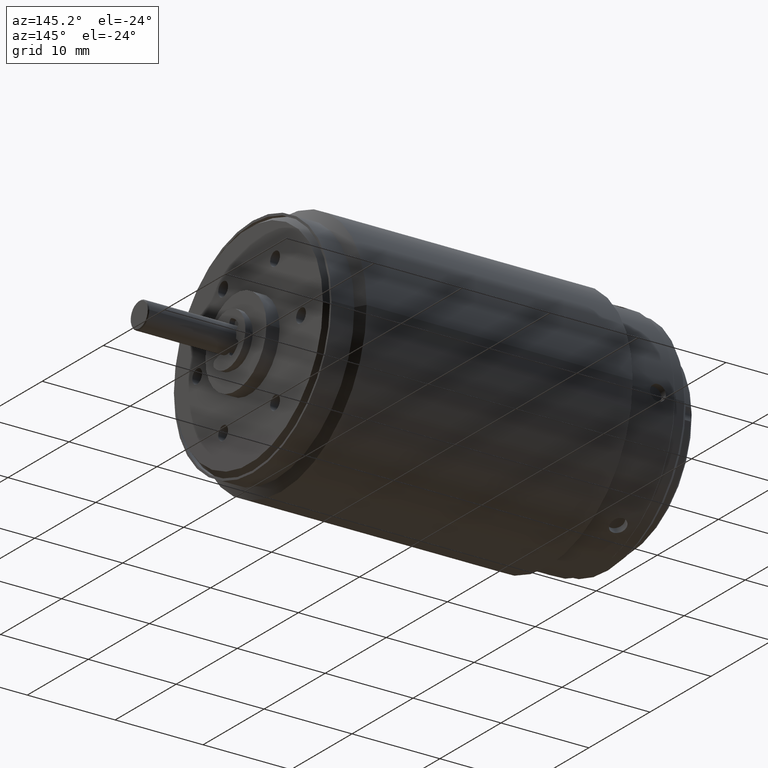
[diagram: clean part render]
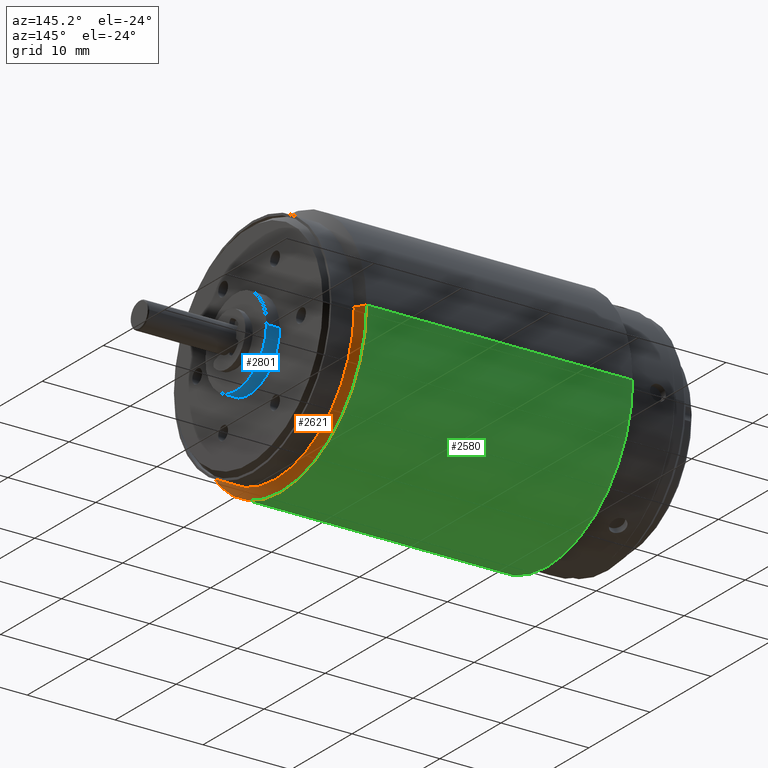
[diagram: same view with three faces highlighted in distinct colors, each labeled with its STEP entity id]
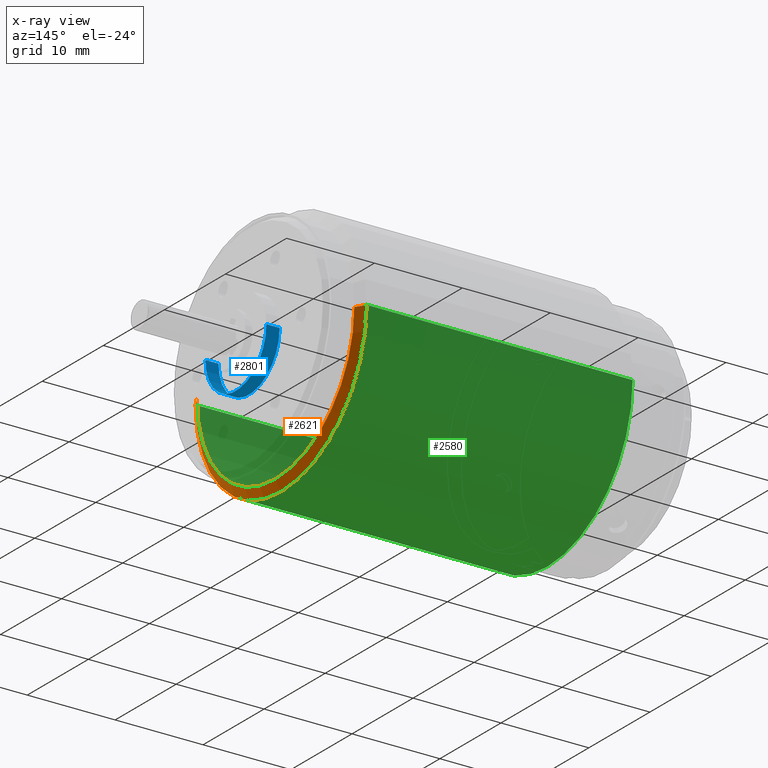
[diagram: x-ray of the same camera — body ghosted, the three highlighted faces saturated]
A machine part, auxiliary view with three faces highlighted in distinct colors.
The next image is the same camera in x-ray (body ghosted, the three faces saturated) — at least one of them is partly hidden behind the body in this view.
Their STEP definitions:

[orange] entity #2621 — the highlighted conical surface has half-angle 60 deg.
#441=CARTESIAN_POINT('',(3.586491470389E1,0.E0,0.E0));
#442=DIRECTION('',(1.E0,0.E0,0.E0));
#443=DIRECTION('',(0.E0,-1.E0,0.E0));
#444=AXIS2_PLACEMENT_3D('',#441,#442,#443);
#464=DIRECTION('',(5.000000000035E-1,8.660254037824E-1,0.E0));
#465=VECTOR('',#464,1.270170592219E0);
#466=CARTESIAN_POINT('',(3.586491470389E1,-1.4E1,0.E0));
#467=LINE('',#466,#465);
#468=CARTESIAN_POINT('',(3.65E1,0.E0,0.E0));
#469=DIRECTION('',(1.E0,0.E0,0.E0));
#470=DIRECTION('',(0.E0,-1.E0,0.E0));
#471=AXIS2_PLACEMENT_3D('',#468,#469,#470);
#473=DIRECTION('',(-5.000000000035E-1,8.660254037824E-1,0.E0));
#474=VECTOR('',#473,1.270170592218E0);
#475=CARTESIAN_POINT('',(3.65E1,1.29E1,0.E0));
#476=LINE('',#475,#474);
#1889=CARTESIAN_POINT('',(3.65E1,-1.29E1,0.E0));
#1890=CARTESIAN_POINT('',(3.65E1,1.29E1,0.E0));
#1891=VERTEX_POINT('',#1889);
#1892=VERTEX_POINT('',#1890);
#1893=CARTESIAN_POINT('',(3.586491470389E1,-1.4E1,0.E0));
#1894=VERTEX_POINT('',#1893);
#1895=CARTESIAN_POINT('',(3.586491470389E1,1.4E1,0.E0));
#1896=VERTEX_POINT('',#1895);
#2609=CARTESIAN_POINT('',(3.618245735194E1,0.E0,0.E0));
#2610=DIRECTION('',(-1.E0,0.E0,0.E0));
#2611=DIRECTION('',(0.E0,1.E0,0.E0));
#2612=AXIS2_PLACEMENT_3D('',#2609,#2610,#2611);
#2613=CONICAL_SURFACE('',#2612,1.345E1,5.999999999960E1);
#2614=ORIENTED_EDGE('',*,*,#2599,.T.);
#2616=ORIENTED_EDGE('',*,*,#2615,.T.);
#2617=ORIENTED_EDGE('',*,*,#2602,.T.);
#2618=ORIENTED_EDGE('',*,*,#2573,.F.);
#2619=EDGE_LOOP('',(#2614,#2616,#2617,#2618));
#2620=FACE_OUTER_BOUND('',#2619,.F.);
#2621=ADVANCED_FACE('',(#2620),#2613,.T.);
#445=CIRCLE('',#444,1.4E1);
#472=CIRCLE('',#471,1.29E1);
#2573=EDGE_CURVE('',#1894,#1896,#445,.T.);
#2599=EDGE_CURVE('',#1894,#1891,#467,.T.);
#2602=EDGE_CURVE('',#1892,#1896,#476,.T.);
#2615=EDGE_CURVE('',#1891,#1892,#472,.T.);

[blue] entity #2801 — the highlighted cylindrical surface (partial cylindrical patch) has radius 5 mm, axis along (1, 0, 0).
#546=CARTESIAN_POINT('',(3.950803759033E1,0.E0,0.E0));
#547=DIRECTION('',(1.E0,0.E0,0.E0));
#548=DIRECTION('',(0.E0,-1.E0,0.E0));
#549=AXIS2_PLACEMENT_3D('',#546,#547,#548);
#611=DIRECTION('',(1.E0,0.E0,0.E0));
#612=VECTOR('',#611,1.5E0);
#613=CARTESIAN_POINT('',(3.950803759033E1,-5.E0,0.E0));
#614=LINE('',#613,#612);
#615=DIRECTION('',(-1.E0,0.E0,0.E0));
#616=VECTOR('',#615,1.5E0);
#617=CARTESIAN_POINT('',(4.100803759033E1,5.E0,0.E0));
#618=LINE('',#617,#616);
#619=CARTESIAN_POINT('',(4.100803759033E1,0.E0,0.E0));
#620=DIRECTION('',(-1.E0,0.E0,0.E0));
#621=DIRECTION('',(0.E0,1.E0,0.E0));
#622=AXIS2_PLACEMENT_3D('',#619,#620,#621);
#1749=CARTESIAN_POINT('',(3.950803759033E1,-5.E0,0.E0));
#1750=CARTESIAN_POINT('',(4.100803759033E1,-5.E0,0.E0));
#1751=VERTEX_POINT('',#1749);
#1752=VERTEX_POINT('',#1750);
#1753=CARTESIAN_POINT('',(3.950803759033E1,5.E0,0.E0));
#1754=VERTEX_POINT('',#1753);
#1755=CARTESIAN_POINT('',(4.100803759033E1,5.E0,0.E0));
#1756=VERTEX_POINT('',#1755);
#2789=CARTESIAN_POINT('',(3.942602054874E1,0.E0,0.E0));
#2790=DIRECTION('',(1.E0,0.E0,0.E0));
#2791=DIRECTION('',(0.E0,-1.E0,0.E0));
#2792=AXIS2_PLACEMENT_3D('',#2789,#2790,#2791);
#2793=CYLINDRICAL_SURFACE('',#2792,5.E0);
#2794=ORIENTED_EDGE('',*,*,#2779,.T.);
#2796=ORIENTED_EDGE('',*,*,#2795,.F.);
#2797=ORIENTED_EDGE('',*,*,#2782,.T.);
#2798=ORIENTED_EDGE('',*,*,#2733,.F.);
#2799=EDGE_LOOP('',(#2794,#2796,#2797,#2798));
#2800=FACE_OUTER_BOUND('',#2799,.F.);
#2801=ADVANCED_FACE('',(#2800),#2793,.T.);
#550=CIRCLE('',#549,5.E0);
#623=CIRCLE('',#622,5.E0);
#2733=EDGE_CURVE('',#1751,#1754,#550,.T.);
#2779=EDGE_CURVE('',#1751,#1752,#614,.T.);
#2782=EDGE_CURVE('',#1756,#1754,#618,.T.);
#2795=EDGE_CURVE('',#1756,#1752,#623,.T.);

[green] entity #2580 — the highlighted cylindrical surface (partial cylindrical patch) has radius 14 mm, axis along (1, 0, 0).
#432=CARTESIAN_POINT('',(5.591784025921E0,0.E0,0.E0));
#433=DIRECTION('',(1.E0,0.E0,0.E0));
#434=DIRECTION('',(0.E0,-1.E0,0.E0));
#435=AXIS2_PLACEMENT_3D('',#432,#433,#434);
#441=CARTESIAN_POINT('',(3.586491470389E1,0.E0,0.E0));
#442=DIRECTION('',(1.E0,0.E0,0.E0));
#443=DIRECTION('',(0.E0,-1.E0,0.E0));
#444=AXIS2_PLACEMENT_3D('',#441,#442,#443);
#446=DIRECTION('',(-1.E0,-1.267437720241E-14,0.E0));
#447=VECTOR('',#446,3.027313067797E1);
#448=CARTESIAN_POINT('',(3.586491470389E1,-1.4E1,0.E0));
#449=LINE('',#448,#447);
#450=DIRECTION('',(1.E0,-2.558346509376E-14,0.E0));
#451=VECTOR('',#450,3.027313067797E1);
#452=CARTESIAN_POINT('',(5.591784025920E0,1.4E1,0.E0));
#453=LINE('',#452,#451);
#1893=CARTESIAN_POINT('',(3.586491470389E1,-1.4E1,0.E0));
#1894=VERTEX_POINT('',#1893);
#1895=CARTESIAN_POINT('',(3.586491470389E1,1.4E1,0.E0));
#1896=VERTEX_POINT('',#1895);
#1897=CARTESIAN_POINT('',(5.591784025921E0,-1.4E1,0.E0));
#1898=CARTESIAN_POINT('',(5.591784025921E0,1.4E1,0.E0));
#1899=VERTEX_POINT('',#1897);
#1900=VERTEX_POINT('',#1898);
#2566=CARTESIAN_POINT('',(4.986321412360E0,0.E0,0.E0));
#2567=DIRECTION('',(1.E0,0.E0,0.E0));
#2568=DIRECTION('',(0.E0,-1.E0,0.E0));
#2569=AXIS2_PLACEMENT_3D('',#2566,#2567,#2568);
#2570=CYLINDRICAL_SURFACE('',#2569,1.4E1);
#2572=ORIENTED_EDGE('',*,*,#2571,.F.);
#2574=ORIENTED_EDGE('',*,*,#2573,.T.);
#2576=ORIENTED_EDGE('',*,*,#2575,.F.);
#2577=ORIENTED_EDGE('',*,*,#2559,.F.);
#2578=EDGE_LOOP('',(#2572,#2574,#2576,#2577));
#2579=FACE_OUTER_BOUND('',#2578,.F.);
#2580=ADVANCED_FACE('',(#2579),#2570,.T.);
#436=CIRCLE('',#435,1.4E1);
#445=CIRCLE('',#444,1.4E1);
#2559=EDGE_CURVE('',#1899,#1900,#436,.T.);
#2571=EDGE_CURVE('',#1894,#1899,#449,.T.);
#2573=EDGE_CURVE('',#1894,#1896,#445,.T.);
#2575=EDGE_CURVE('',#1900,#1896,#453,.T.);